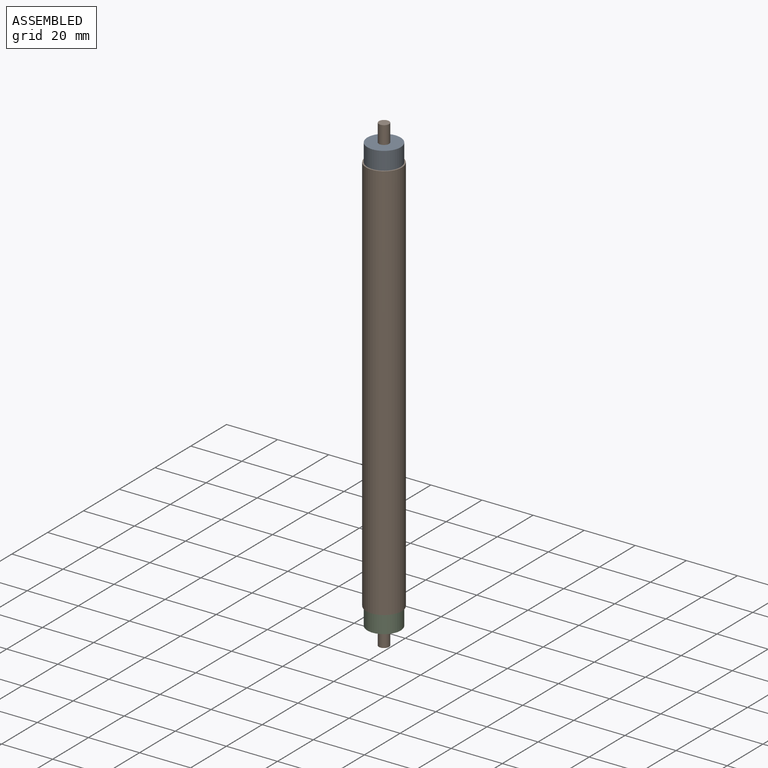
[diagram: assembled view]
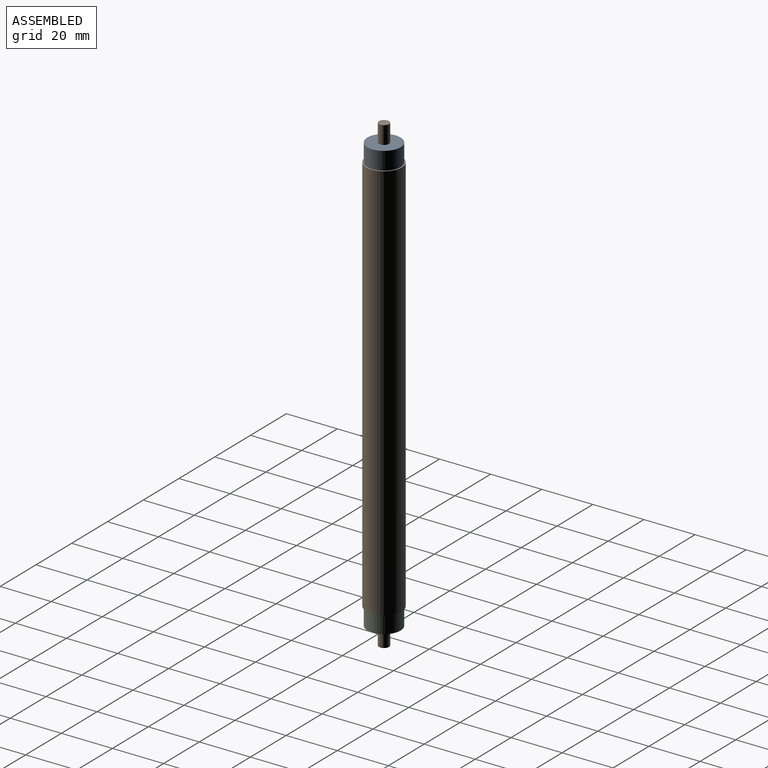
[diagram: assembled view, second angle]
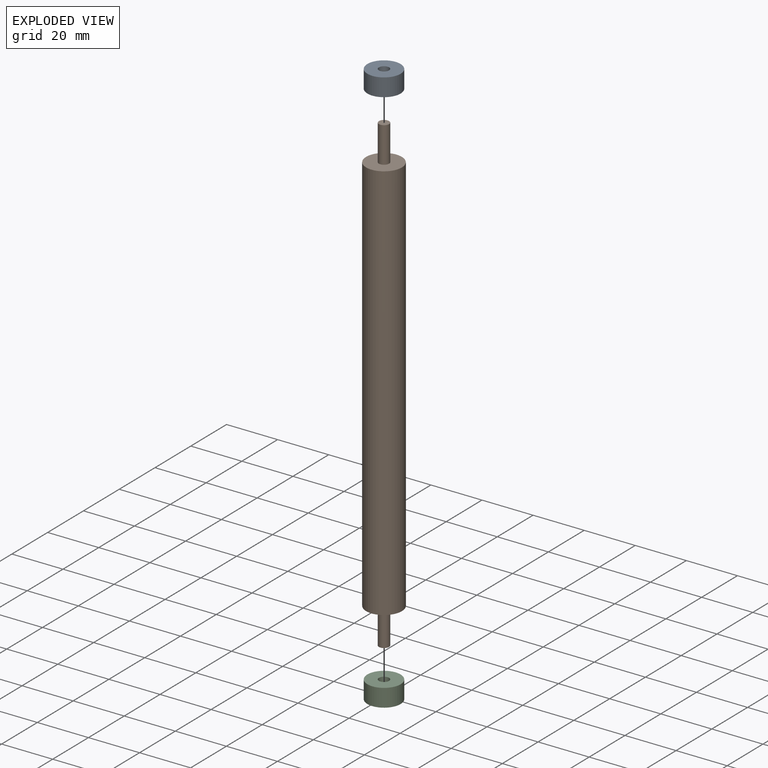
[diagram: exploded view]
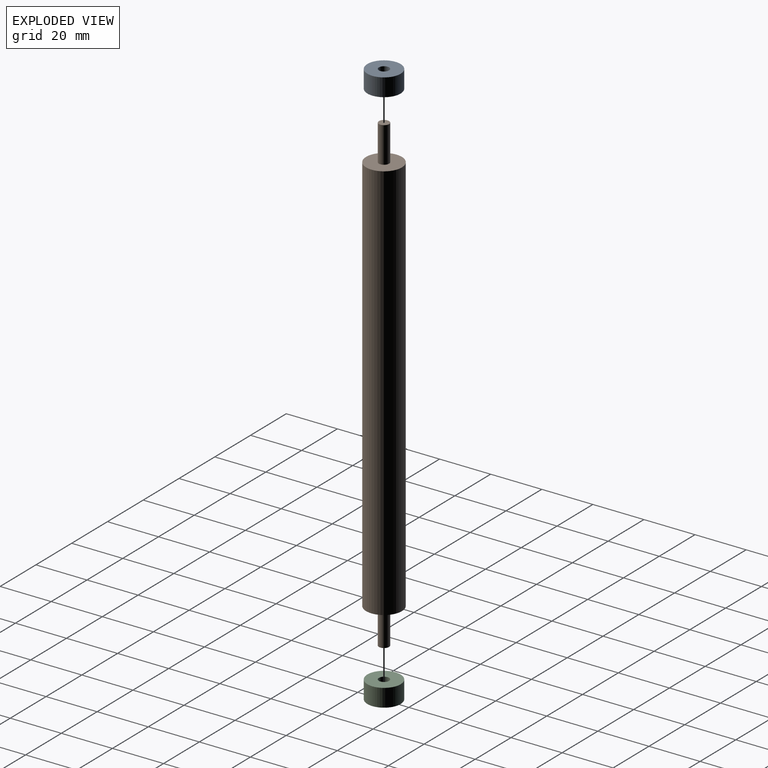
[diagram: exploded view, second angle]
ASSEMBLY  parts=3 mates=4
PART A: 4 faces, bbox 13x13x7 mm
  f0: cylinder r=2mm len=7mm, axis (0,0,-1), area 88mm2, adj f2,f3
  f1: cylinder r=6.5mm len=13mm, axis (0,0,-1), area 285.9mm2, adj f2,f3
  f2: plane 13x13mm, normal (0,0,1), area 120.2mm2, adj f0,f1
  f3: plane 13x13mm, normal (0,0,-1), area 120.2mm2, adj f0,f1
PART B: 7 faces, bbox 14x14x185 mm
  f0: cylinder r=7mm len=157mm, axis (0,0,-1), area 6905.2mm2, adj f1,f2
  f1: plane 14x14mm, normal (0,0,1), area 141.4mm2, adj f0,f3
  f2: plane 14x14mm, normal (0,0,-1), area 141.4mm2, adj f0,f5
  f3: cylinder r=2mm len=14mm, axis (0,0,-1), area 175.9mm2, adj f1,f4
  f4: plane 4x4mm, normal (0,0,1), area 12.6mm2, adj f3
  f5: cylinder r=2mm len=14mm, axis (0,0,1), area 175.9mm2, adj f2,f6
  f6: plane 4x4mm, normal (0,0,-1), area 12.6mm2, adj f5
PART C: same geometry as A
PLACE A t=(-15.65,-46.66,111.07)mm
PLACE B t=(-15.65,-46.66,29.07)mm
PLACE C t=(-15.65,-46.66,-52.93)mm
MATE planar B.f0 <-> A.f1  axis (0,0,1) through (-15.65,-46.66,107.57)mm
MATE planar C.f1 <-> B.f0  axis (0,0,1) through (-15.65,-46.66,-49.43)mm
MATE cylindrical A.f0 <-> B.f3  axis (0,0,-1) through (-15.65,-46.66,111.07)mm
MATE cylindrical B.f5 <-> C.f0  axis (0,0,1) through (-15.65,-46.66,-56.43)mm
